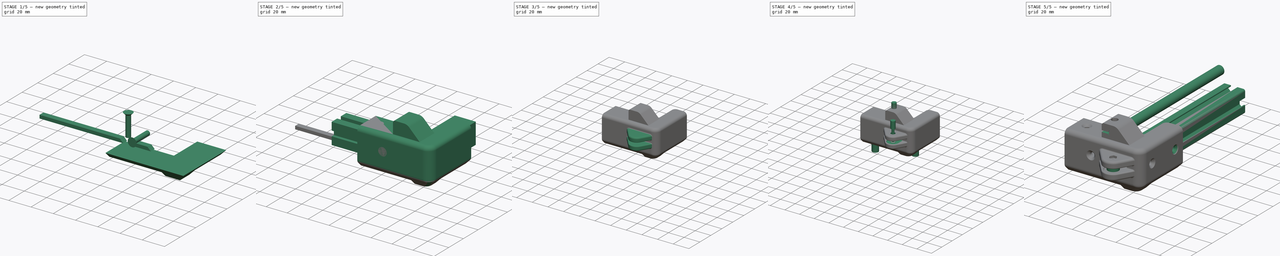
[diagram: build sequence overview — one tinted view per stage of 5, left to right]
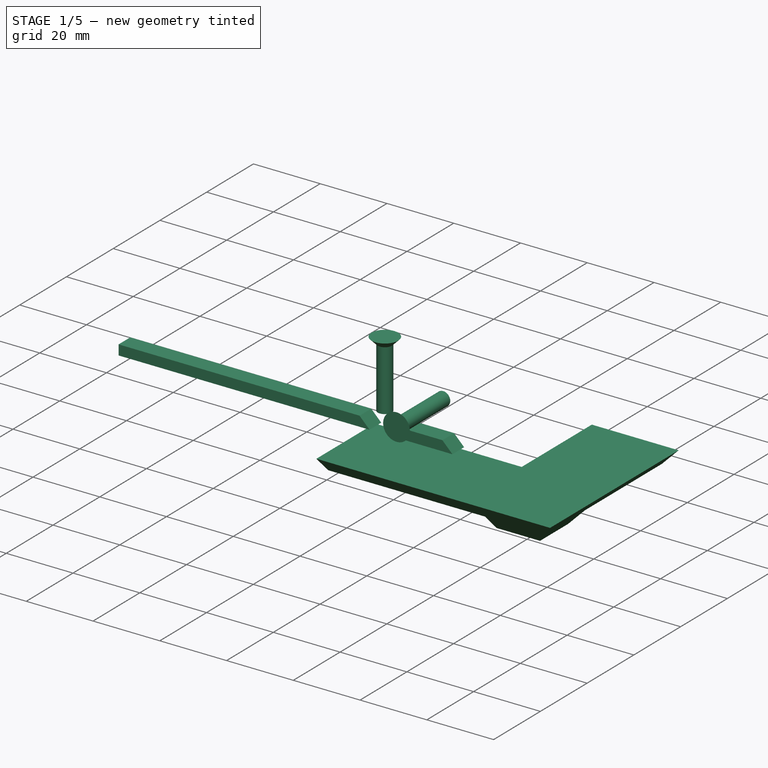
[diagram: stage 1 of 5 — iso view after this stage's code; geometry added in this stage tinted green]
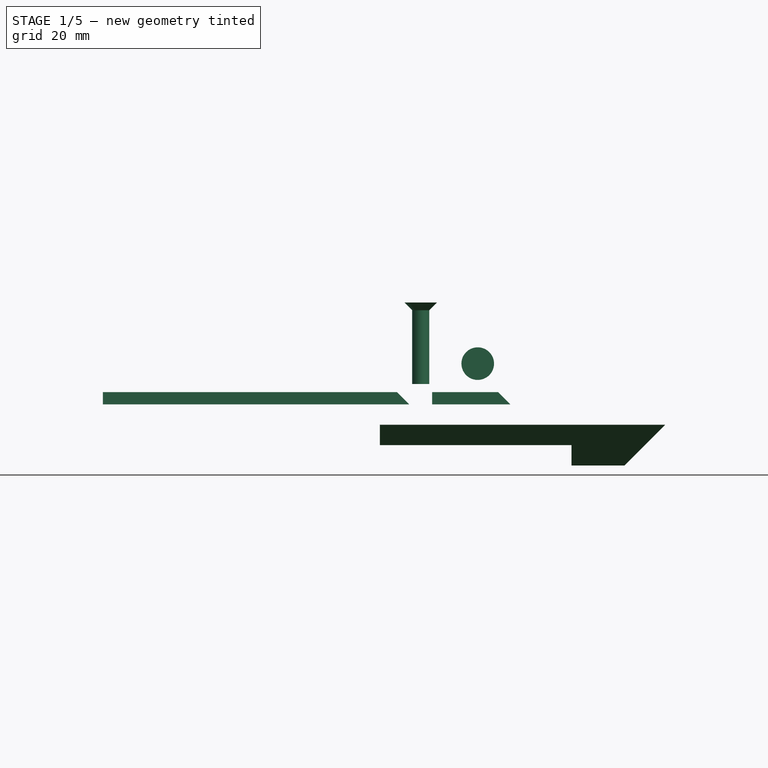
[diagram: stage 1 of 5 — front view after this stage's code; geometry added in this stage tinted green]
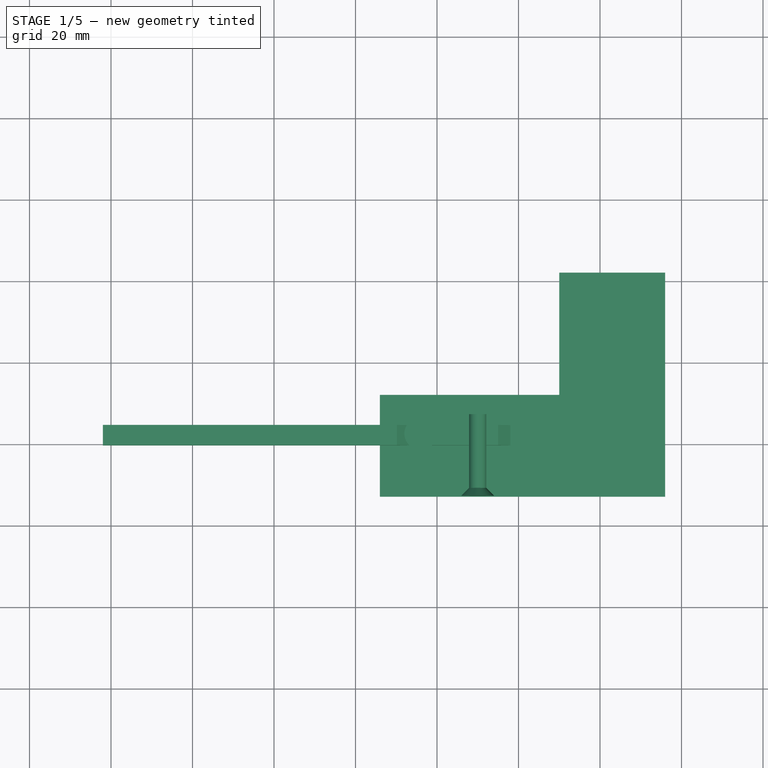
[diagram: stage 1 of 5 — top view after this stage's code; geometry added in this stage tinted green]
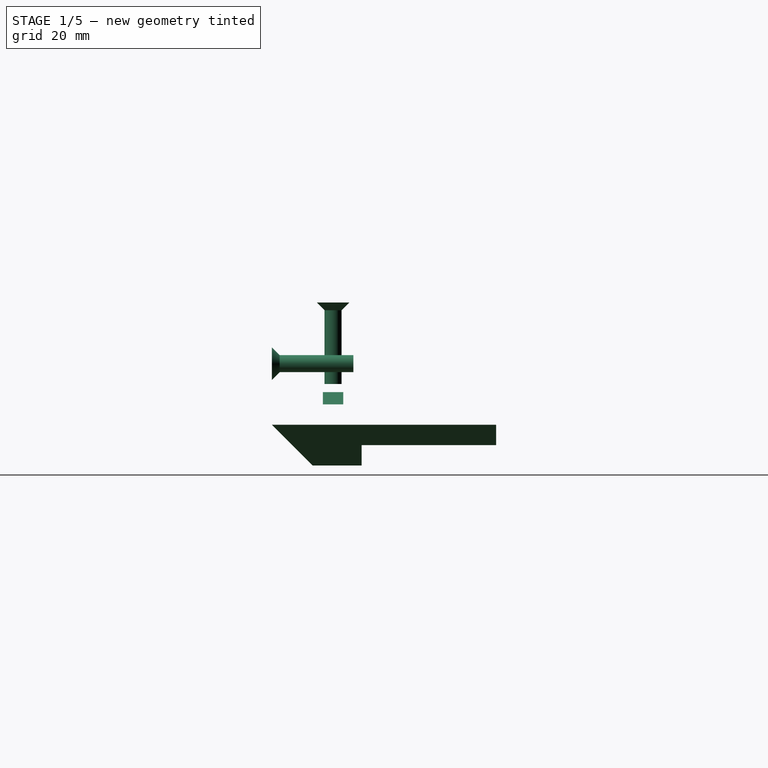
[diagram: stage 1 of 5 — right view after this stage's code; geometry added in this stage tinted green]
FCSTD DOCUMENT  (FreeCAD 0.16RUnknown)
Label: FrontCorner
License: All rights reserved
LicenseURL: http://en.wikipedia.org/wiki/All_rights_reserved
objects: Part::FeaturePython×29, Sketcher::SketchObject×17, Part::Cut×17, PartDesign::Pad×13, Part::Fillet×5, Part::Box×4, App::DocumentObjectGroup×4, Part::Chamfer×4, Part::MultiFuse×4, Part::Mirroring×3, Part::MultiCommon×3, PartDesign::Draft×3, Part::Feature×2, Part::Extrusion×2, Part::Compound×2, PartDesign::Pocket×2, Part::Part2DObjectPython×1, Spreadsheet::Sheet×1, PartDesign::Revolution×1
note: 128 computed .brp shape members not serialized (recipe doc carries the construction recipe); baked Part::Feature solids carry a one-line shape summary decoded from their .brp

FEATURE [Part::Box] Box004  label="Vert20Prof"
  Height = 20
  Length = 20
  Placement = pos=(-10,-10,-10) rot=(0,0,1;0rad)
  Width = 100
FEATURE [Part::Box] Box001  label="20GuideHalf"
  Height = 100
  Length = 3
  Placement = pos=(0,-2.5,2.825) rot=(0,0,1;0rad)
  Width = 5
FEATURE [Part::Box] Box002  label="20GuideHalf001"
  Height = 100
  Length = 3
  Placement = pos=(0,2.5,-2.825) rot=(1,0,0;3.14159rad)
  Width = 5
FEATURE [Part::Compound] Compound002  label="20Guide"
  Links = -> [Box001,Box002]
FEATURE [Part::Box] Box  label="Foot"
  Height = 10
  Length = 23
  Placement = pos=(16,7,-15) rot=(0,1,0;3.14159rad)
  Width = 22
FEATURE [Part::Part2DObjectPython] Clone2D  label="Clone of Base (2D)"  # Draft 2D object (typed FeaturePython)
  Objects = -> [Sketch001]
  Placement = pos=(0,0,-15) rot=(0,0,1;0rad)
  Scale = (1,1,1)
FEATURE [PartDesign::Pad] Pad018  label="SideCover"
  Length = 5
  Length2 = 100
  Placement = pos=(0,0,-15) rot=(0,0,1;0rad)
  Reversed = true
  Sketch = -> Clone2D
  Type = 0
FEATURE [Part::MultiFuse] Fusion005  label="LowerCover"
  Shapes = -> [Pad018,Box]
FEATURE [Part::FeaturePython] Clone039  label="Clone of 20Guide002"  # Draft clone (typed FeaturePython)
  Objects = -> [Compound002]
  Placement = pos=(-44,22,10) rot=(0,1,0;1.5708rad)
  Scale = (1,1,1)
  expr: Placement.Base.x = M4PrintHead003.Placement.Base.x
FEATURE [Part::FeaturePython] Clone040  label="Clone of Vert20Prof001"  # Draft clone (typed FeaturePython)
  Objects = -> [Box004]
  Placement = pos=(-22,12,-10) rot=(0,0,1;1.5708rad)
  Scale = (1,1,1)
FEATURE [Part::MultiCommon] Common002  label="UpperFront"
  Shapes = -> [Clone040,Clone039]
FEATURE [PartDesign::Draft] Draft002  label="UpperFrontDrafted"
  Angle = 45
  Base = -> Common002 [Face10,Face1]
  NeutralPlane = -> Common002 [Face2]
  Reversed = true
FEATURE [App::DocumentObjectGroup] Group002  label="Guides_src"
  Group = -> [Box004,Compound002,Compound003,Common001,Common002,Draft002]
FEATURE [Part::FeaturePython] Clone041  label="Clone of UpperFrontDrafted"  # Draft clone (typed FeaturePython)
  Objects = -> [Draft002]
  Scale = (1,1,1)
FEATURE [Sketcher::SketchObject] Sketch051  label="DIN7991M4Bolt"
  expr: Constraints[12] = pars.CilLoose + 2
  sketch-geometry (5):
    g0: LineSegment StartX=0 StartY=0 StartZ=0 EndX=4 EndY=0 EndZ=0
    g1: LineSegment StartX=4 StartY=0 StartZ=0 EndX=2.1 EndY=-1.9 EndZ=0
    g2: LineSegment StartX=2.1 StartY=-1.9 StartZ=0 EndX=2.1 EndY=-20 EndZ=0
    g3: LineSegment StartX=2.1 StartY=-20 StartZ=0 EndX=0 EndY=-20 EndZ=0
    g4: LineSegment StartX=0 StartY=-20 StartZ=0 EndX=0 EndY=0 EndZ=0
  constraints (14):
    c: Coincident(g0,g1)
    c: Coincident(g1,g2)
    c: Coincident(g2,g3)
    c: Coincident(g3,g4)
    c: Coincident(g4,g0)
    c: Coincident(g0,g-1)
    c: Horizontal(g0)
    c: Horizontal(g3)
    c: Vertical(g4)
    c: Vertical(g2)
    c: Angle(g0,g1) = 0.785398
    c: DistanceY(g4,g4) = 20
    c: DistanceX(g3,g3) = 2.1
    c: DistanceX(g0,g0) = 4
FEATURE [Spreadsheet::Sheet] Spreadsheet001  label="pars"
  cells = A1=Bolts and Nuts; B1=Value; D1=Components; E1=Value; A2=Thread Tight Tolerance (Radius, ratio); B2(ThrTighRatio)=0.96; D2=Tight Cilinder Tolerances (Radius, mm); E2(CilTight)=0.1; A3=Thread Tight Tolerance (Radius, mm); B3(ThrTightmm)=0.1; D3=Loose Cilinder Tolerances (Radius, mm); E3(CilLoose)=0.1; A5=Nut Slot Width Clearance (mm); B5(NutWidthClearmm)=0.1; A6=Nut Slot Thickess Clearance (mm); B6(NutThickClearmm)=0.1; A13=Particular parameters; B13=Value; A14=Smooth Rod Tolerance; B14(SmRodTol)=-0.05; A15=Profile Tolerance; B15(ProfTol)=0
FEATURE [PartDesign::Revolution] Revolution001  label="DIN7991M4Bolt001"
  Angle = 360
  Axis = (0,1,0)
  Base = (0,0,0)
  ReferenceAxis = -> Sketch051 [V_Axis]
  Reversed = true
  Sketch = -> Sketch051
FEATURE [Part::FeaturePython] refine001  label="refine_LowerCover"  # WARN: FeaturePython — macro-defined, semantics opaque (R4)
  Base = -> Fusion005
FEATURE [PartDesign::Draft] Draft003  label="LowerFeet"
  Angle = 45
  Base = -> refine001 [Face9,Face11]
  NeutralPlane = -> refine001 [Face10]
  Reversed = true
FEATURE [Part::FeaturePython] Clone048002  label="Clone of Clone of UpperFrontDrafted"  # Draft clone (typed FeaturePython)
  Objects = -> [Clone041]
  Placement = pos=(0,44,0) rot=(1,0,0;3.14159rad)
  Scale = (1,1,1)
FEATURE [Part::FeaturePython] Clone048003  label="Clone of DIN7991M4Bolt002"  # Draft clone (typed FeaturePython)
  Objects = -> [Revolution001]
  Placement = pos=(-30,7,0) rot=(1,0,0;3.14159rad)
  Scale = (1,1,1)
FEATURE [Part::FeaturePython] Clone048004  label="Clone of DIN7991M4Bolt003"  # Draft clone (typed FeaturePython)
  Objects = -> [Revolution001]
  Placement = pos=(-44,22,15) rot=(1,0,0;1.5708rad)
  Scale = (1,1,1)
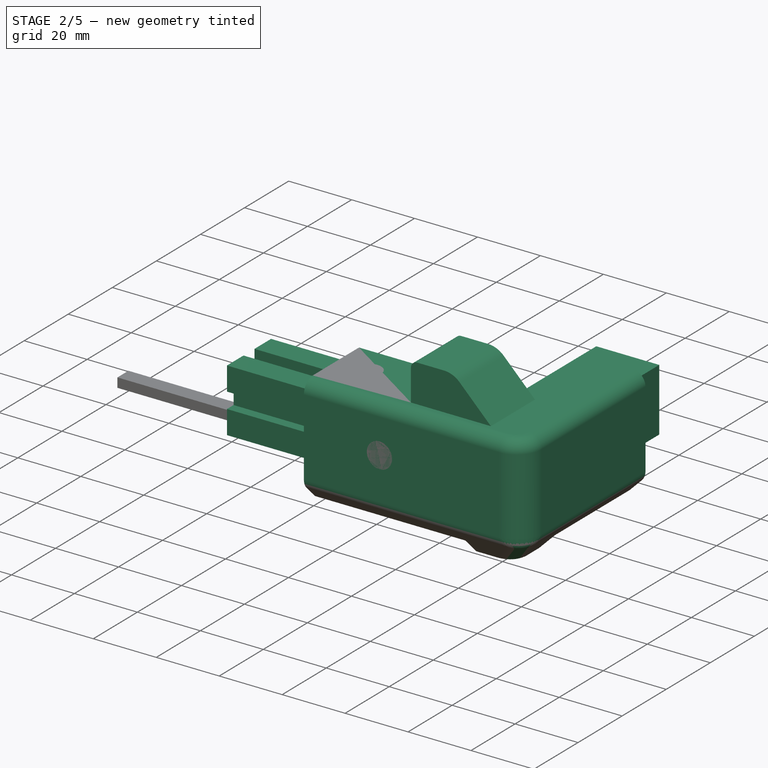
[diagram: stage 2 of 5 — iso view after this stage's code; geometry added in this stage tinted green]
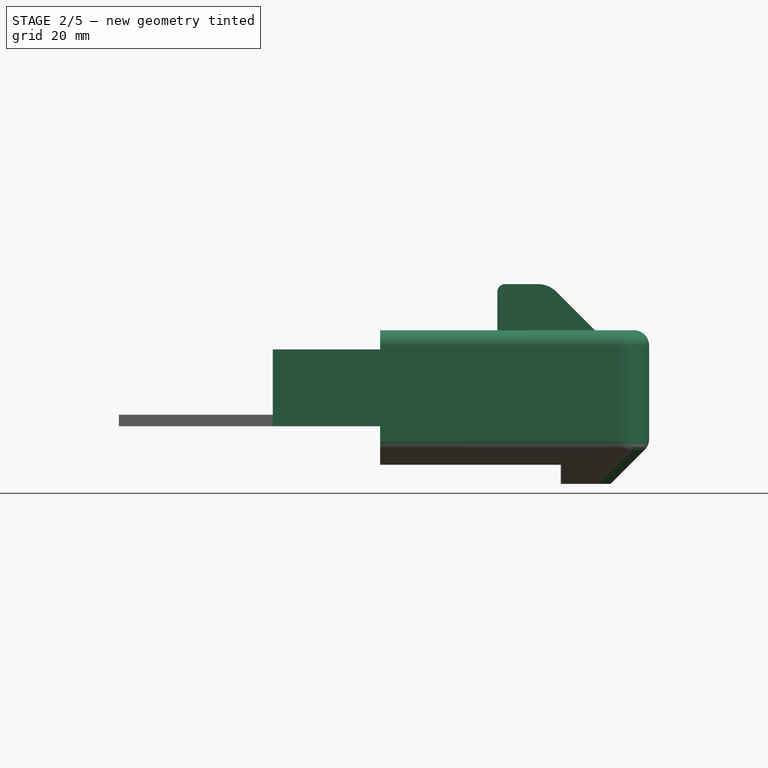
[diagram: stage 2 of 5 — front view after this stage's code; geometry added in this stage tinted green]
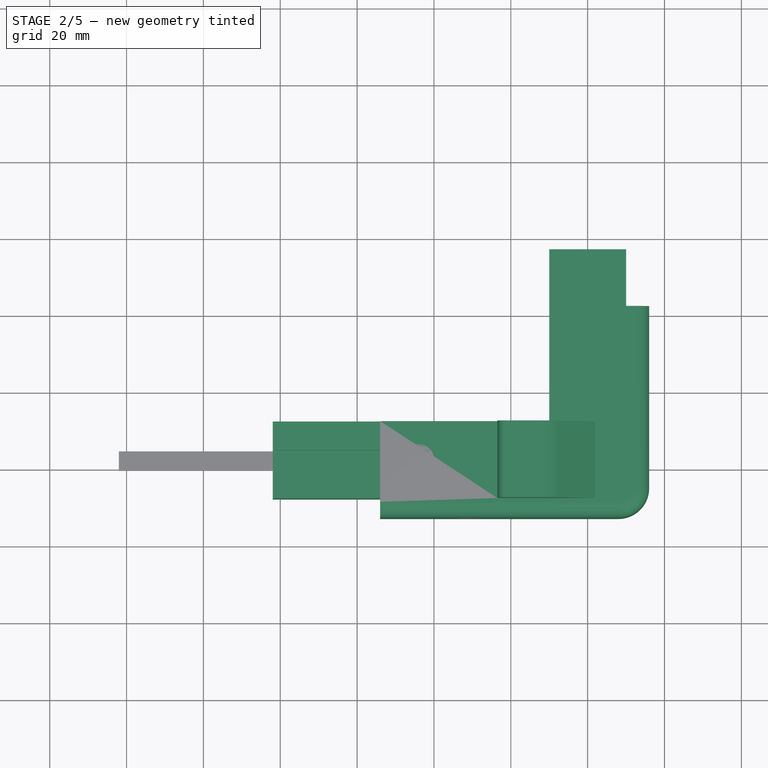
[diagram: stage 2 of 5 — top view after this stage's code; geometry added in this stage tinted green]
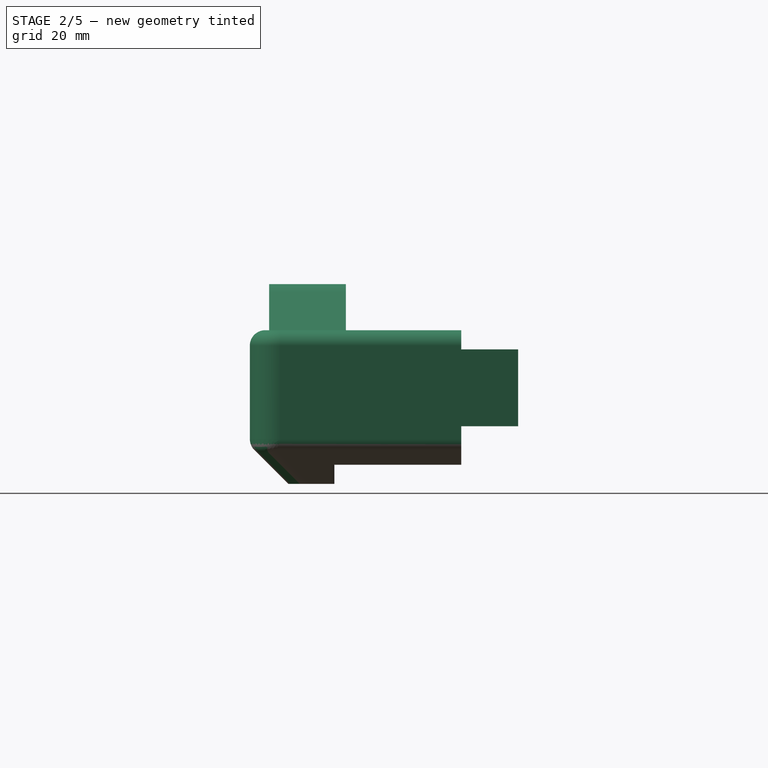
[diagram: stage 2 of 5 — right view after this stage's code; geometry added in this stage tinted green]
FEATURE [Sketcher::SketchObject] Sketch001  label="Base"
  sketch-geometry (6):
    g0: LineSegment StartX=16 StartY=62 StartZ=0 EndX=-10 EndY=62 EndZ=0
    g1: LineSegment StartX=-10 StartY=62 StartZ=0 EndX=-10 EndY=32 EndZ=0
    g2: LineSegment StartX=-10 StartY=32 StartZ=0 EndX=-54 EndY=32 EndZ=0
    g3: LineSegment StartX=-54 StartY=32 StartZ=0 EndX=-54 EndY=7 EndZ=0
    g4: LineSegment StartX=-54 StartY=7 StartZ=0 EndX=16 EndY=7 EndZ=0
    g5: LineSegment StartX=16 StartY=7 StartZ=0 EndX=16 EndY=62 EndZ=0
  constraints (18):
    c: Coincident(g0,g1)
    c: Coincident(g1,g2)
    c: Coincident(g2,g3)
    c: Coincident(g3,g4)
    c: Coincident(g5,g0)
    c: Horizontal(g0)
    c: Horizontal(g2)
    c: Horizontal(g4)
    c: Vertical(g3)
    c: Vertical(g1)
    c: Vertical(g5)
    c: DistanceX(g0,g0) = 26
    c: DistanceY(g3,g3) = 25
    c: DistanceY(g2) = 32
    c: DistanceX(g0) = -10
    c: DistanceX(g2,g2) = 44
    c: DistanceY(g1,g1) = 30
    c: Coincident(g4,g5)
FEATURE [PartDesign::Pad] Pad  label="Base001"
  Length = 30
  Length2 = 100
  Midplane = true
  Sketch = -> Sketch001
  Type = 0
FEATURE [Sketcher::SketchObject] Sketch002  label="IdlerHold"
  sketch-geometry (11):
    g0: LineSegment [constr] StartX=15 StartY=57.5009 StartZ=0 EndX=-10 EndY=57.5009 EndZ=0
    g1: LineSegment [constr] StartX=-10 StartY=57.5009 StartZ=0 EndX=-10 EndY=32 EndZ=0
    g2: LineSegment [constr] StartX=-10 StartY=32 StartZ=0 EndX=-39.2593 EndY=32 EndZ=0
    g3: LineSegment [constr] StartX=-39.2593 StartY=32 StartZ=0 EndX=-39.2593 EndY=7 EndZ=0
    g4: LineSegment [constr] StartX=-39.2593 StartY=7 StartZ=0 EndX=7 EndY=7 EndZ=0
    g5: LineSegment [constr] StartX=15 StartY=15 StartZ=0 EndX=15 EndY=57.5009 EndZ=0
    g6: ArcOfCircle [constr] CenterX=7 CenterY=15 CenterZ=0 NormalX=0 NormalY=0 NormalZ=1 Radius=8 StartAngle=4.71239 EndAngle=6.28319
    g7: LineSegment StartX=-22.1224 StartY=7 StartZ=0 EndX=-11.3944 EndY=-5.78509 EndZ=0
    g8: LineSegment StartX=11.5416 StartY=9.78488 StartZ=0 EndX=3.29421 EndY=-4.50003 EndZ=0
    g9: LineSegment StartX=-22.1224 StartY=7 StartZ=0 EndX=11.5416 EndY=9.78488 EndZ=0
    g10: ArcOfCircle CenterX=-4.5 CenterY=0 CenterZ=0 NormalX=0 NormalY=0 NormalZ=1 Radius=9 StartAngle=3.83972 EndAngle=5.75958
  constraints (30):
    c: Coincident(g0,g1)
    c: Coincident(g1,g2)
    c: Coincident(g2,g3)
    c: Coincident(g3,g4)
    c: Coincident(g5,g0)
    c: Horizontal(g0)
    c: Horizontal(g2)
    c: Horizontal(g4)
    c: Vertical(g3)
    c: Vertical(g1)
    c: Vertical(g5)
    c: DistanceX(g0,g0) = 25
    c: DistanceY(g3,g3) = 25
    c: DistanceY(g2) = 32
    c: DistanceX(g0) = -10
    c: Tangent(g5,g6) = -1.5708
    c: Tangent(g4,g6) = -1.5708
    c: Radius(g6) = 8
    c: Coincident(g7,g9)
    c: Coincident(g8,g9)
    c: PointOnObject(g10,g-1)
    c: DistanceX(g10) = -4.5
    c: Coincident(g10,g8)
    c: Coincident(g10,g7)
    c: PointOnObject(g7,g4)
    c: Tangent(g7,g10)
    c: Tangent(g10,g8)
    c: Radius(g10) = 9
    c: Angle(g7) = -0.872665
    c: Angle(g8) = -2.0944
FEATURE [Sketcher::SketchObject] Sketch003  label="ProfileCavity"
  expr: Constraints[11] = 20 + pars.ProfTol
  sketch-geometry (6):
    g0: LineSegment StartX=10 StartY=76.8219 StartZ=0 EndX=-10 EndY=76.8219 EndZ=0
    g1: LineSegment StartX=-10 StartY=76.8219 StartZ=0 EndX=-10 EndY=32 EndZ=0
    g2: LineSegment StartX=-10 StartY=32 StartZ=0 EndX=-81.949 EndY=32 EndZ=0
    g3: LineSegment StartX=-81.949 StartY=32 StartZ=0 EndX=-81.949 EndY=12 EndZ=0
    g4: LineSegment StartX=-81.949 StartY=12 StartZ=0 EndX=10 EndY=12 EndZ=0
    g5: LineSegment StartX=10 StartY=12 StartZ=0 EndX=10 EndY=76.8219 EndZ=0
  constraints (16):
    c: Coincident(g0,g1)
    c: Coincident(g1,g2)
    c: Coincident(g2,g3)
    c: Coincident(g3,g4)
    c: Coincident(g5,g0)
    c: Horizontal(g0)
    c: Horizontal(g2)
    c: Horizontal(g4)
    c: Vertical(g3)
    c: Vertical(g1)
    c: Vertical(g5)
    c: DistanceX(g0,g0) = 20
    c: DistanceY(g2) = 32
    c: DistanceX(g0) = -10
    c: Equal(g3,g0)
    c: Coincident(g4,g5)
FEATURE [PartDesign::Pad] Pad002  label="ProfileCavity001"
  Length = 20
  Length2 = 100
  Midplane = true
  Sketch = -> Sketch003
  Type = 0
  expr: Length = 20 + pars.ProfTol
FEATURE [Part::FeaturePython] Clone027  label="Clone of 20Guide001"  # Draft clone (typed FeaturePython)
  Objects = -> [Compound002]
  Placement = pos=(-30,22,10) rot=(0,1,0;1.5708rad)
  Scale = (1,1,1)
FEATURE [Part::FeaturePython] Clone028  label="Clone of Vert20Prof"  # Draft clone (typed FeaturePython)
  Objects = -> [Box004]
  Placement = pos=(-14,12,-10) rot=(0,0,1;1.5708rad)
  Scale = (1,1,1)
FEATURE [Part::MultiCommon] Common001  label="UpperSlot"
  Placement = pos=(0,22,-22) rot=(1,0,0;1.5708rad)
  Shapes = -> [Clone027,Clone028]
FEATURE [PartDesign::Draft] Draft  label="UpperSlot001"
  Angle = 45
  Base = -> Common001 [Face5,Face11]
  NeutralPlane = -> Common001 [Face1]
  Placement = pos=(0,22,-22) rot=(1,0,0;1.5708rad)
  Reversed = true
FEATURE [Part::Cut] Cut
  Base = -> Pad002
  Tool = -> Clone041
FEATURE [Part::Cut] Cut004004009
  Base = -> Cut
  Tool = -> Draft
FEATURE [Part::MultiFuse] Fusion002  label="Foot002"
  Shapes = -> [Pad,Draft003]
FEATURE [Part::FeaturePython] refine002  label="refine_Foot002"  # WARN: FeaturePython — macro-defined, semantics opaque (R4)
  Base = -> Fusion002
FEATURE [Sketcher::SketchObject] Sketch048  label="LowerPlateCut"
  Placement = pos=(0,0,-20) rot=(1,0,0;3.14159rad)
  Support = -> refine002 [Face6]
  sketch-geometry (6):
    g0: LineSegment StartX=-70 StartY=-14 StartZ=0 EndX=-7 EndY=-14 EndZ=0
    g1: LineSegment StartX=-7 StartY=-14 StartZ=0 EndX=-7 EndY=-29 EndZ=0
    g2: LineSegment StartX=-7 StartY=-29 StartZ=0 EndX=8 EndY=-29 EndZ=0
    g3: LineSegment StartX=8 StartY=-29 StartZ=0 EndX=8 EndY=-70 EndZ=0
    g4: LineSegment StartX=8 StartY=-70 StartZ=0 EndX=-70 EndY=-70 EndZ=0
    g5: LineSegment StartX=-70 StartY=-70 StartZ=0 EndX=-70 EndY=-14 EndZ=0
  constraints (18):
    c: Horizontal(g0)
    c: Vertical(g1)
    c: Horizontal(g2)
    c: Vertical(g3)
    c: Coincident(g3,g4)
    c: Horizontal(g4)
    c: Coincident(g4,g5)
    c: Coincident(g5,g0)
    c: Vertical(g5)
    c: DistanceY(g2) = -29
    c: DistanceX(g1) = -7
    c: DistanceY(g0) = -14
    c: DistanceX(g3) = 8
    c: Coincident(g1,g0)
    c: Coincident(g1,g2)
    c: Coincident(g2,g3)
    c: DistanceX(g4) = -70
    c: DistanceY(g4) = -70
FEATURE [PartDesign::Pocket] Pocket001  label="LowerPlateCut001"
  Length = 5
  Sketch = -> Sketch048
  Type = 0
FEATURE [Part::FeaturePython] refine003  label="refine_LowerPlateCut001"  # WARN: FeaturePython — macro-defined, semantics opaque (R4)
  Base = -> Pocket001
FEATURE [Part::Fillet] Fillet  label="LoweLidFillet"
  Base = -> refine003
  Edges = 3 edges: [Edge30 r=9,Edge41 r=9,Edge44 r=4]
FEATURE [Part::Fillet] Fillet008  label="FootFillet"
  Base = -> Fillet
  Edges = 8 edges: [Edge25 r=1,Edge37 r=1,Edge47 r=8,Edge48 r=4,Edge49 r=4,Edge50 r=4,Edge51 r=8,Edge55 r=4]
FEATURE [Sketcher::SketchObject] Sketch042  label="AntiCollitionCut"
  Placement = pos=(0,0,15) rot=(0,0,1;0rad)
  Support = -> Fillet008 [Face6]
  sketch-geometry (4):
    g0: LineSegment StartX=-14.9846 StartY=64.9854 StartZ=0 EndX=0 EndY=64.9854 EndZ=0
    g1: LineSegment StartX=0 StartY=64.9854 StartZ=0 EndX=0 EndY=32 EndZ=0
    g2: LineSegment StartX=0 StartY=32 StartZ=0 EndX=-14.9846 EndY=32 EndZ=0
    g3: LineSegment StartX=-14.9846 StartY=32 StartZ=0 EndX=-14.9846 EndY=64.9854 EndZ=0
  constraints (10):
    c: Coincident(g0,g1)
    c: Coincident(g1,g2)
    c: Coincident(g2,g3)
    c: Coincident(g3,g0)
    c: Horizontal(g0)
    c: Horizontal(g2)
    c: Vertical(g1)
    c: Vertical(g3)
    c: PointOnObject(g0,g-2)
    c: DistanceY(g1) = 32
FEATURE [PartDesign::Pocket] Pocket  label="AntiCollitionCut001"
  Length = 20
  Sketch = -> Sketch042
  Type = 0
FEATURE [Part::FeaturePython] refine004  label="refine_AntiCollitionCut001"  # WARN: FeaturePython — macro-defined, semantics opaque (R4)
  Base = -> Pocket
FEATURE [Part::Fillet] Fillet003  label="CollitionFillet"
  Base = -> refine004
  Edges = 2 edges r=4: [Edge4,Edge22]
FEATURE [Sketcher::SketchObject] Sketch041  label="SmRodHolder"
  Placement = pos=(0,32,0) rot=(0,0.707107,0.707107;3.14159rad)
  Support = -> Fillet003 [Face13]
  sketch-geometry (6):
    g0: LineSegment StartX=8.05023 StartY=24.9497 StartZ=0 EndX=-2.89949 EndY=14 EndZ=0
    g1: LineSegment StartX=-2.89949 StartY=14 StartZ=0 EndX=23.5 EndY=14 EndZ=0
    g2: LineSegment StartX=21.5 StartY=27 StartZ=0 EndX=13 EndY=27 EndZ=0
    g3: ArcOfCircle CenterX=13 CenterY=20 CenterZ=0 NormalX=0 NormalY=0 NormalZ=1 Radius=7 StartAngle=1.5708 EndAngle=2.3562
    g4: LineSegment StartX=23.5 StartY=25 StartZ=0 EndX=23.5 EndY=14 EndZ=0
    g5: ArcOfCircle CenterX=21.5 CenterY=25 CenterZ=0 NormalX=0 NormalY=0 NormalZ=1 Radius=2 StartAngle=0 EndAngle=1.5708
  constraints (18):
    c: Coincident(g0,g1)
    c: Horizontal(g1)
    c: Coincident(g0,g3)
    c: Coincident(g3,g2)
    c: Tangent(g3,g2)
    c: Tangent(g0,g3)
    c: DistanceY(g3) = 20
    c: DistanceX(g3) = 13
    c: Radius(g3) = 7
    c: Angle(g0) = -2.35619
    c: Horizontal(g2)
    c: Coincident(g4,g1)
    c: Tangent(g2,g5) = -1.5708
    c: Tangent(g4,g5) = 1.5708
    c: Radius(g5) = 2
    c: Vertical(g4)
    c: DistanceY(g0) = 14
    c: DistanceX(g3,g1) = 10.5
FEATURE [PartDesign::Pad] Pad014  label="SmRodHolder001"
  Length = 20
  Length2 = 100
  Reversed = true
  Sketch = -> Sketch041
  Type = 0
FEATURE [Part::FeaturePython] refine005  label="refine_SmRodHolder001"  # WARN: FeaturePython — macro-defined, semantics opaque (R4)
  Base = -> Pad014
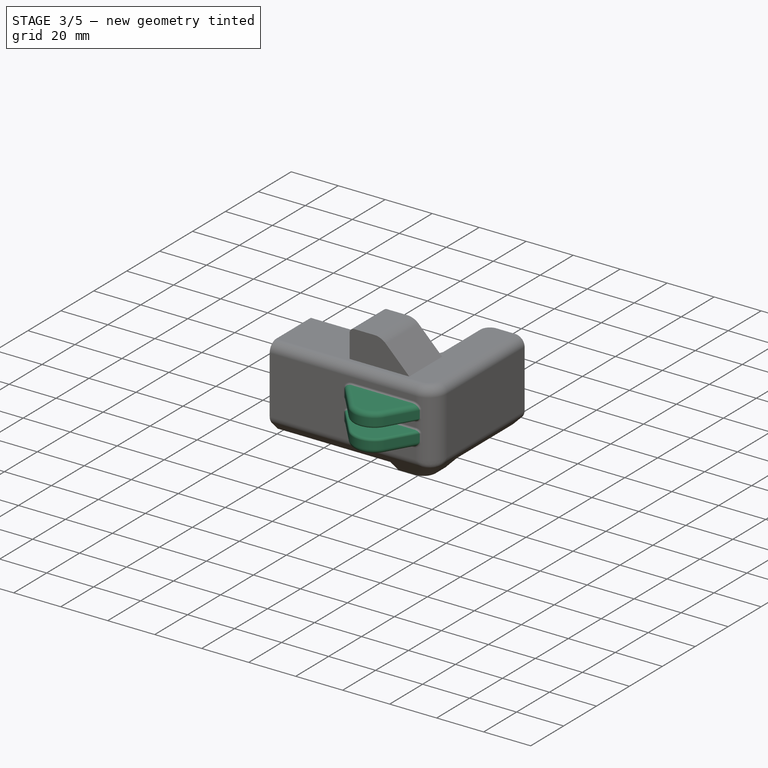
[diagram: stage 3 of 5 — iso view after this stage's code; geometry added in this stage tinted green]
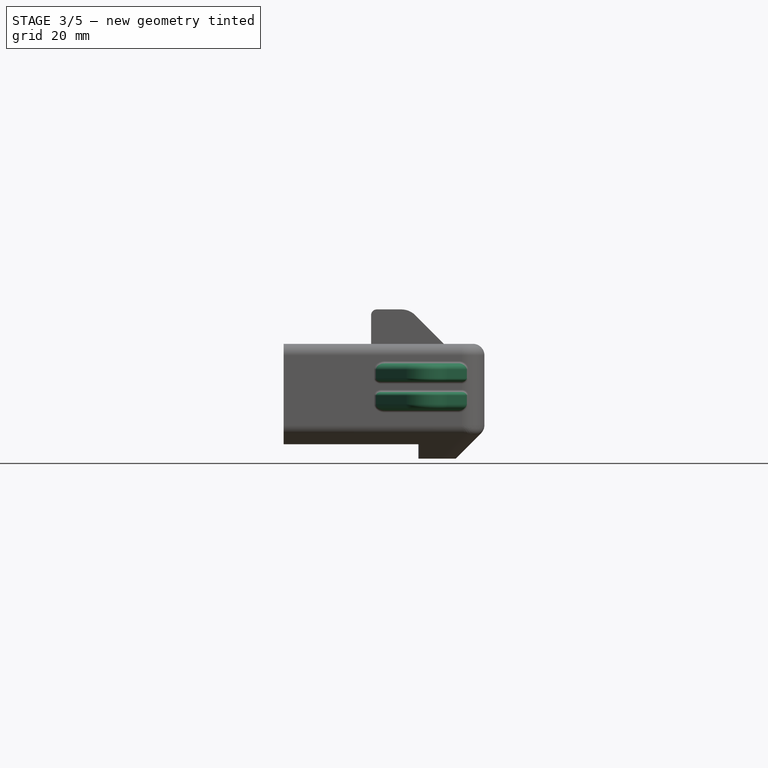
[diagram: stage 3 of 5 — front view after this stage's code; geometry added in this stage tinted green]
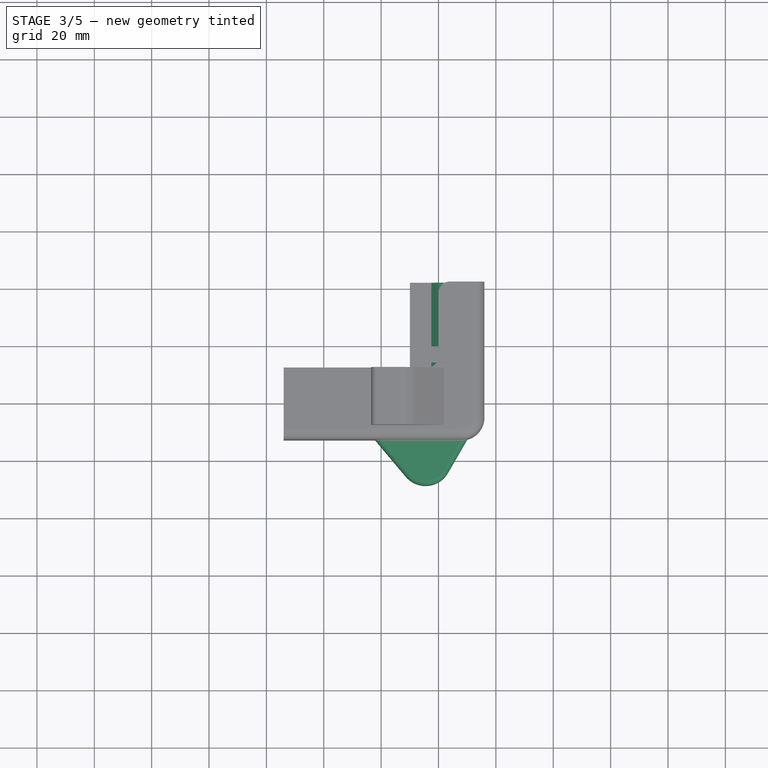
[diagram: stage 3 of 5 — top view after this stage's code; geometry added in this stage tinted green]
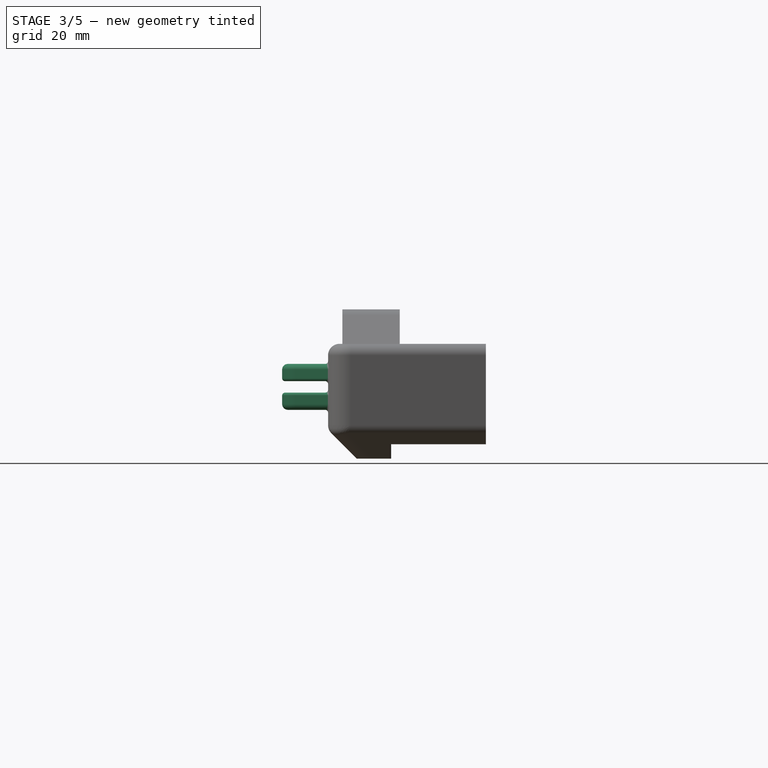
[diagram: stage 3 of 5 — right view after this stage's code; geometry added in this stage tinted green]
FEATURE [PartDesign::Pad] Pad015  label="IdlerHold001"
  Length = 6
  Length2 = 100
  Sketch = -> Sketch002
  Type = 0
FEATURE [Part::Fillet] Fillet005
  Base = -> Pad015
  Edges = 2 edges: [Edge11 r=1,Edge12 r=2]
  Placement = pos=(0,0,2) rot=(0,0,1;0rad)
FEATURE [Part::Mirroring] Part__Mirroring002  label="Fillet005 (Mirror #3)"
  Base = (0,0,0)
  Normal = (0,0,1)
  Source = -> Fillet005
FEATURE [Sketcher::SketchObject] Sketch043  label="20AngledGuideSketch"
  sketch-geometry (3):
    g0: LineSegment StartX=0 StartY=2.5 StartZ=0 EndX=-2.5 EndY=0 EndZ=0
    g1: LineSegment StartX=-2.5 StartY=0 StartZ=0 EndX=2.5 EndY=0 EndZ=0
    g2: LineSegment StartX=2.5 StartY=0 StartZ=0 EndX=0 EndY=2.5 EndZ=0
  constraints (9):
    c: Coincident(g0,g1)
    c: Coincident(g1,g2)
    c: Coincident(g2,g0)
    c: Horizontal(g1)
    c: PointOnObject(g0,g-1)
    c: PointOnObject(g0,g-2)
    c: Symmetric(g1,g0,g-2)
    c: Perpendicular(g2,g0)
    c: DistanceX(g1) = 5
FEATURE [Part::Extrusion] Extrude  label="20AngledGuideHalf"
  Base = -> Sketch043
  Dir = (0,0,100)
  Placement = pos=(0,0,2.825) rot=(0,0,1;0rad)
  Solid = true
FEATURE [Part::Extrusion] Extrude001  label="20AngledGuideHalf001"
  Base = -> Sketch043
  Dir = (0,0,-100)
  Placement = pos=(0,0,-2.825) rot=(0,0,1;0rad)
  Solid = true
FEATURE [Part::Compound] Compound003  label="20AngledGuide"
  Links = -> [Extrude,Extrude001]
FEATURE [Part::FeaturePython] Clone025  label="Clone of 20Guide"  # Draft clone (typed FeaturePython)
  Objects = -> [Compound002]
  Placement = pos=(10,22,0) rot=(0,0.707107,0.707107;3.14159rad)
  Scale = (1,1,1)
FEATURE [Part::FeaturePython] Clone026  label="Clone of Clone of 20Guide"  # Draft clone (typed FeaturePython)
  Objects = -> [Clone025]
  Placement = pos=(10,52,0) rot=(0,0.707107,0.707107;3.14159rad)
  Scale = (1,1,1)
FEATURE [Part::MultiCommon] Common  label="SideSlots"
  Shapes = -> [Clone025,Clone026]
FEATURE [Part::FeaturePython] Clone031  label="Clone of 20AngledGuide"  # Draft clone (typed FeaturePython)
  Objects = -> [Compound003]
  Placement = pos=(0,37,-10) rot=(1,0,0;1.5708rad)
  Scale = (1,1,1)
FEATURE [Part::Cut] Cut004004010
  Base = -> Cut004004009
  Tool = -> Clone048002
FEATURE [Part::Cut] Cut004004011
  Base = -> Cut004004010
  Tool = -> Common
FEATURE [Part::Cut] Cut004004012  label="ProfileCavity002"
  Base = -> Cut004004011
  Tool = -> Clone031
FEATURE [Part::Cut] Cut004004013  label="ProfileCavity003"
  Base = -> refine005
  Tool = -> Cut004004012
FEATURE [Part::MultiFuse] Fusion  label="IdlerHoldAdd"
  Shapes = -> [Cut004004013,Fillet005]
FEATURE [Part::MultiFuse] Fusion003  label="IdlerHold002"
  Shapes = -> [Fusion,Part__Mirroring002]
FEATURE [Part::FeaturePython] refine006  label="refine_IdlerHold002"  # WARN: FeaturePython — macro-defined, semantics opaque (R4)
  Base = -> Fusion003
FEATURE [Part::Fillet] Fillet006
  Base = -> refine006
  Edges = 2 edges r=1: [Edge96,Edge106]
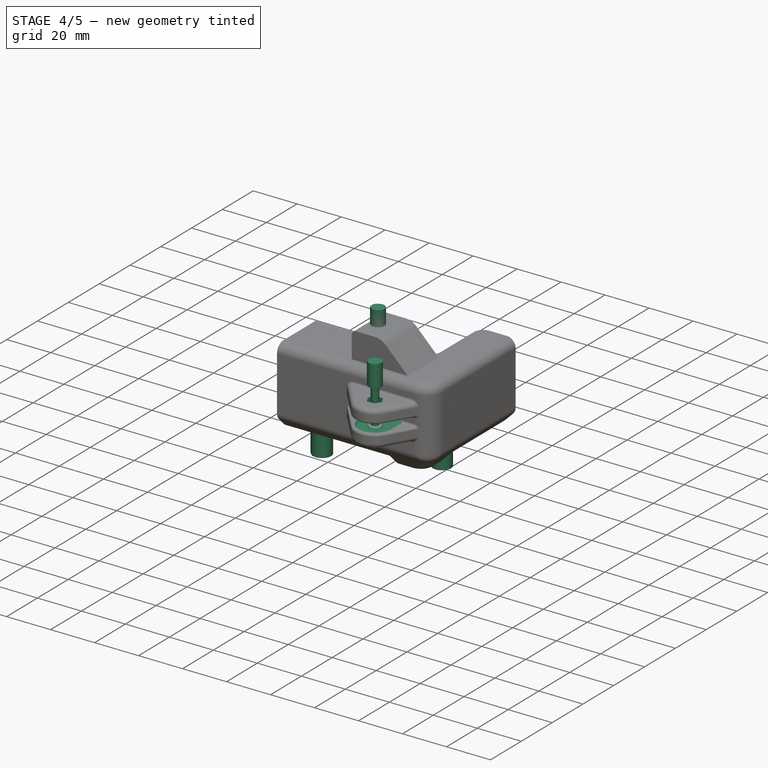
[diagram: stage 4 of 5 — iso view after this stage's code; geometry added in this stage tinted green]
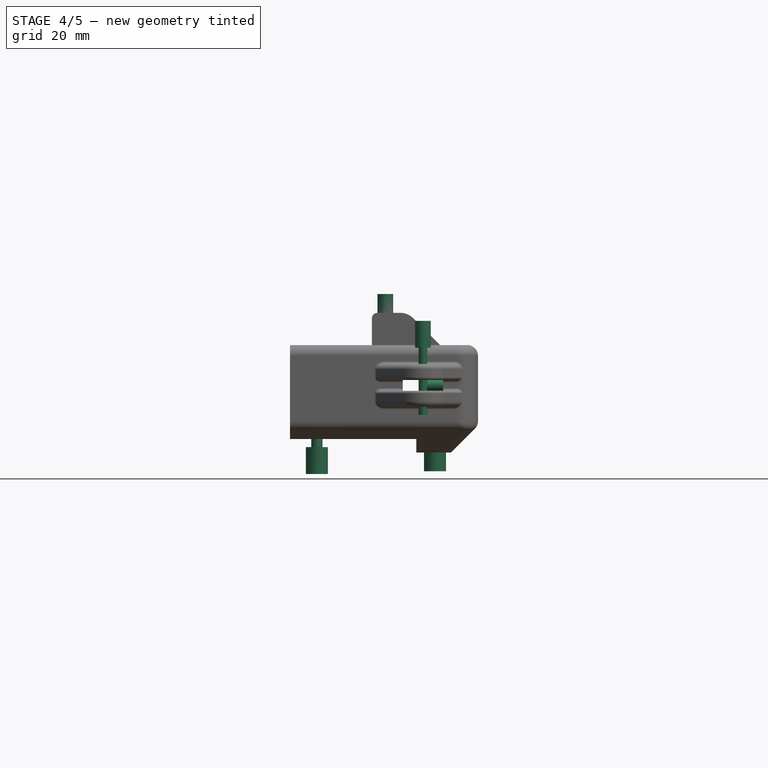
[diagram: stage 4 of 5 — front view after this stage's code; geometry added in this stage tinted green]
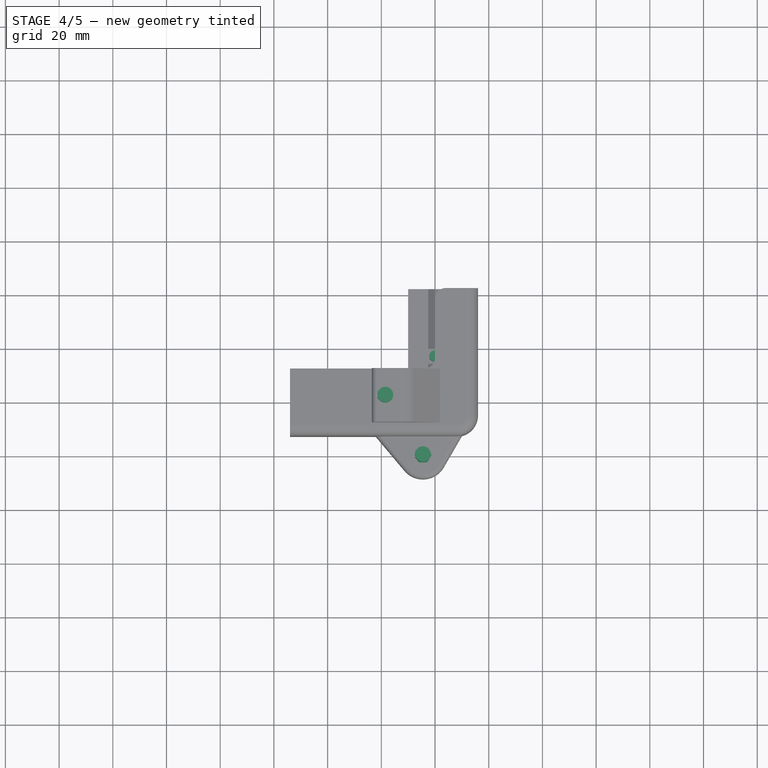
[diagram: stage 4 of 5 — top view after this stage's code; geometry added in this stage tinted green]
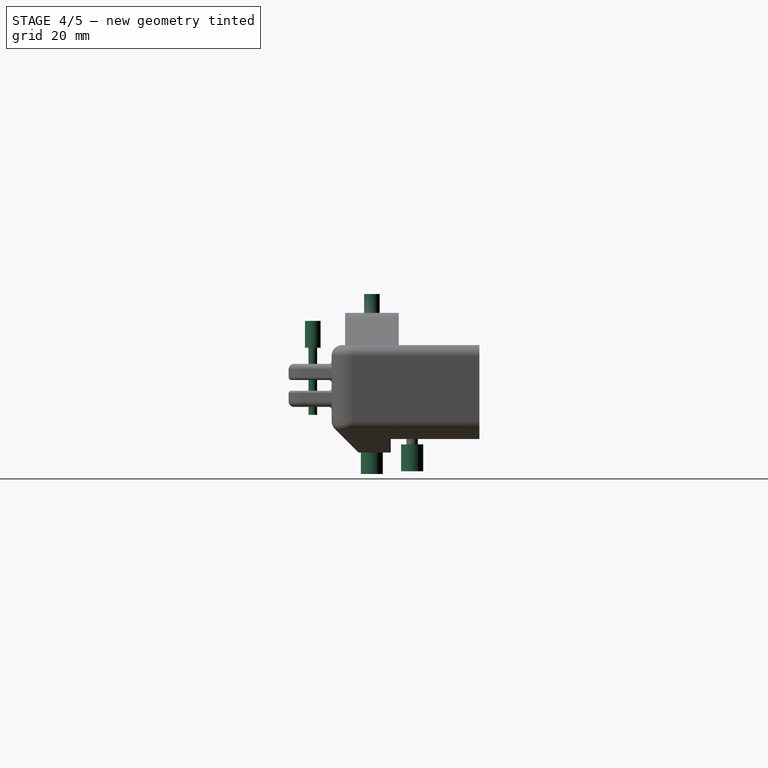
[diagram: stage 4 of 5 — right view after this stage's code; geometry added in this stage tinted green]
FEATURE [Sketcher::SketchObject] Sketch033  label="M3Nut"
  Placement = pos=(0,0,15) rot=(0,0,1;0rad)
  expr: Constraints[19] = 5.5 + pars.NutWidthClearmm
  sketch-geometry (7):
    g0: LineSegment StartX=2.8 StartY=-1.61658 StartZ=0 EndX=2.8 EndY=1.61658 EndZ=0
    g1: LineSegment StartX=2.8 StartY=1.61658 StartZ=0 EndX=-8e-12 EndY=3.23316 EndZ=0
    g2: LineSegment StartX=-8e-12 StartY=3.23316 StartZ=0 EndX=-2.8 EndY=1.61658 EndZ=0
    g3: LineSegment StartX=-2.8 StartY=1.61658 StartZ=0 EndX=-2.8 EndY=-1.61658 EndZ=0
    g4: LineSegment StartX=-2.8 StartY=-1.61658 StartZ=0 EndX=-4e-12 EndY=-3.23316 EndZ=0
    g5: LineSegment StartX=-4e-12 StartY=-3.23316 StartZ=0 EndX=2.8 EndY=-1.61658 EndZ=0
    g6: Circle [constr] CenterX=0 CenterY=0 CenterZ=0 NormalX=0 NormalY=0 NormalZ=1 Radius=3.23316
  constraints (16):
    c: Coincident(g0,g1)
    c: Coincident(g1,g2)
    c: Coincident(g2,g3)
    c: Coincident(g3,g4)
    c: Coincident(g4,g5)
    c: Coincident(g5,g0)
    c: Equal(g0, g1-g5) x5
    c: PointOnObject(g0,g6)
    c: PointOnObject(g1,g6)
    c: PointOnObject(g2,g6)
    c: PointOnObject(g3,g6)
    c: PointOnObject(g4,g6)
    c: PointOnObject(g5,g6)
    c: Vertical(g3)
    c: Coincident(g6,g-1)
    c: DistanceX(g2,g0) = 5.6
FEATURE [PartDesign::Pad] Pad011  label="M3Nut001"
  Length = 3
  Length2 = 100
  Placement = pos=(0,0,15) rot=(0,0,1;0rad)
  Sketch = -> Sketch033
  Type = 0
FEATURE [Sketcher::SketchObject] Sketch044  label="IdlerCavity"
  sketch-geometry (4):
    g0: ArcOfCircle CenterX=-4.5 CenterY=0 CenterZ=0 NormalX=0 NormalY=0 NormalZ=1 Radius=7.5 StartAngle=3.14159 EndAngle=6.28319
    g1: LineSegment StartX=-12 StartY=1.67436e-07 StartZ=0 EndX=-12 EndY=33.262 EndZ=0
    g2: LineSegment StartX=-12 StartY=33.262 StartZ=0 EndX=3 EndY=33.262 EndZ=0
    g3: LineSegment StartX=3 StartY=33.262 StartZ=0 EndX=3 EndY=-1.9662e-07 EndZ=0
  constraints (12):
    c: Coincident(g1,g2)
    c: Coincident(g2,g3)
    c: Vertical(g3)
    c: Vertical(g1)
    c: Coincident(g1,g0)
    c: Coincident(g0,g3)
    c: Tangent(g0,g3)
    c: Tangent(g1,g0)
    c: Horizontal(g2)
    c: PointOnObject(g0,g-1)
    c: DistanceX(g0) = -4.5
    c: Radius(g0) = 7.5
FEATURE [PartDesign::Pad] Pad016  label="IdlerCavity001"
  Length = 5.8
  Length2 = 100
  Midplane = true
  Sketch = -> Sketch044
  Type = 0
FEATURE [Part::Feature] Fillet001  label="FrontIdler"
  Placement = pos=(-4.5,0,-2) rot=(0,0,1;0rad)
  shape: bbox 15.35 x 15.35 x 5 mm, 10 faces (baked)
FEATURE [App::DocumentObjectGroup] Group  label="Reference"
  Group = -> [Clone018,Fillet002,Sketch,Part__Mirroring001,Part__Mirroring,Fillet001]
FEATURE [Part::Chamfer] Chamfer  label="PrintableChamfer"
  Base = -> Pad016
  Edges = 2 edges r=0.6: [Edge3,Edge4]
FEATURE [Part::FeaturePython] Clone033  label="Clone of M3Nut001"  # Draft clone (typed FeaturePython)
  Objects = -> [Pad011]
  Placement = pos=(-4.5,0,6) rot=(0,0,1;1.5708rad)
  Scale = (1,1,1)
FEATURE [Part::FeaturePython] Clone037  label="Clone of M3Nut002"  # Draft clone (typed FeaturePython)
  Objects = -> [Pad011]
  Placement = pos=(-18.5,22,10) rot=(0,0,1;0rad)
  Scale = (1,1,1)
FEATURE [Part::FeaturePython] Clone042  label="Clone of DIN7991M4Bolt001"  # Draft clone (typed FeaturePython)
  Objects = -> [Revolution001]
  Placement = pos=(16,22,0) rot=(0,0,-1;1.5708rad)
  Scale = (1,1,1)
FEATURE [Sketcher::SketchObject] Sketch052  label="M3PrintThread"
  expr: Constraints[11] = pars.CilLoose + 1.5
  sketch-geometry (4):
    g0: LineSegment StartX=-1.13136 StartY=1.13138 StartZ=0 EndX=-0.662742 EndY=1.6 EndZ=0
    g1: LineSegment StartX=-0.662742 StartY=1.6 StartZ=0 EndX=0.662742 EndY=1.6 EndZ=0
    g2: LineSegment StartX=0.662742 StartY=1.6 StartZ=0 EndX=1.13137 EndY=1.13137 EndZ=0
    g3: ArcOfCircle CenterX=0 CenterY=0 CenterZ=0 NormalX=0 NormalY=0 NormalZ=1 Radius=1.6 StartAngle=2.35619 EndAngle=7.06858
  constraints (12):
    c: Coincident(g0,g1)
    c: Coincident(g1,g2)
    c: Coincident(g3,g-1)
    c: Coincident(g0,g3)
    c: Coincident(g2,g3)
    c: Tangent(g1,g3)
    c: Tangent(g3,g0)
    c: Tangent(g2,g3)
    c: Perpendicular(g2,g0)
    c: Angle(g0,g1) = 2.35619
    c: Horizontal(g1)
    c: Radius(g3) = 1.6
FEATURE [PartDesign::Pad] Pad020  label="M3PrintThread001"
  Length = 25
  Length2 = 100
  Reversed = true
  Sketch = -> Sketch052
  Type = 0
FEATURE [Sketcher::SketchObject] Sketch053  label="M3PrintHead"
  Support = -> Pad020 [Face5]
  expr: Constraints[11] = -pars.CilTight + 3
  sketch-geometry (4):
    g0: LineSegment StartX=-2.0506 StartY=2.05062 StartZ=0 EndX=-1.20122 EndY=2.9 EndZ=0
    g1: LineSegment StartX=-1.20122 StartY=2.9 StartZ=0 EndX=1.20122 EndY=2.9 EndZ=0
    g2: LineSegment StartX=1.20122 StartY=2.9 StartZ=0 EndX=2.0506 EndY=2.05062 EndZ=0
    g3: ArcOfCircle CenterX=0 CenterY=0 CenterZ=0 NormalX=0 NormalY=0 NormalZ=1 Radius=2.9 StartAngle=2.35619 EndAngle=7.06859
  constraints (12):
    c: Coincident(g0,g1)
    c: Coincident(g1,g2)
    c: Coincident(g3,g-1)
    c: Coincident(g0,g3)
    c: Coincident(g2,g3)
    c: Tangent(g1,g3)
    c: Tangent(g3,g0)
    c: Tangent(g2,g3)
    c: Perpendicular(g2,g0)
    c: Angle(g0,g1) = 2.35619
    c: Horizontal(g1)
    c: Radius(g3) = 2.9
FEATURE [PartDesign::Pad] Pad021  label="M3PrintHead001"
  Length = 10
  Length2 = 100
  Sketch = -> Sketch053
  Type = 0
FEATURE [Part::FeaturePython] Clone043  label="Clone of M3PrintableHead001"  # Draft clone (typed FeaturePython)
  Objects = -> [Pad021]
  Placement = pos=(-18.5,22,24) rot=(0,0,1;1.5708rad)
  Scale = (1,1,1)
FEATURE [Part::FeaturePython] Clone044  label="Clone of M3PrintableHead002"  # Draft clone (typed FeaturePython)
  Objects = -> [Pad021]
  Placement = pos=(-4.5,0,14) rot=(0,0,1;1.5708rad)
  Scale = (1,1,1)
FEATURE [Sketcher::SketchObject] Sketch054  label="M4PrintThread"
  expr: Constraints[11] = pars.CilLoose + 2
  sketch-geometry (4):
    g0: LineSegment StartX=-1.48493 StartY=1.48492 StartZ=0 EndX=-0.869848 EndY=2.1 EndZ=0
    g1: LineSegment StartX=-0.869848 StartY=2.1 StartZ=0 EndX=0.869848 EndY=2.1 EndZ=0
    g2: LineSegment StartX=0.869848 StartY=2.1 StartZ=0 EndX=1.48493 EndY=1.48492 EndZ=0
    g3: ArcOfCircle CenterX=0 CenterY=0 CenterZ=0 NormalX=0 NormalY=0 NormalZ=1 Radius=2.1 StartAngle=2.3562 EndAngle=7.06858
  constraints (12):
    c: Coincident(g0,g1)
    c: Coincident(g1,g2)
    c: Coincident(g3,g-1)
    c: Coincident(g0,g3)
    c: Coincident(g2,g3)
    c: Tangent(g1,g3)
    c: Tangent(g3,g0)
    c: Tangent(g2,g3)
    c: Perpendicular(g2,g0)
    c: Angle(g0,g1) = 2.35619
    c: Horizontal(g1)
    c: Radius(g3) = 2.1
FEATURE [PartDesign::Pad] Pad022  label="M4PrintThread001"
  Length = 20
  Length2 = 100
  Reversed = true
  Sketch = -> Sketch054
  Type = 0
FEATURE [Sketcher::SketchObject] Sketch055  label="M4PrintHead"
  Support = -> Pad022 [Face5]
  expr: Constraints[11] = pars.CilLoose + 4
  sketch-geometry (4):
    g0: LineSegment StartX=-2.89912 StartY=2.89915 StartZ=0 EndX=-1.69828 EndY=4.1 EndZ=0
    g1: LineSegment StartX=-1.69828 StartY=4.1 StartZ=0 EndX=1.69828 EndY=4.1 EndZ=0
    g2: LineSegment StartX=1.69828 StartY=4.1 StartZ=0 EndX=2.89913 EndY=2.89914 EndZ=0
    g3: ArcOfCircle CenterX=0 CenterY=0 CenterZ=0 NormalX=0 NormalY=0 NormalZ=1 Radius=4.1 StartAngle=2.35619 EndAngle=7.06859
  constraints (12):
    c: Coincident(g0,g1)
    c: Coincident(g1,g2)
    c: Coincident(g3,g-1)
    c: Coincident(g0,g3)
    c: Coincident(g2,g3)
    c: Tangent(g1,g3)
    c: Tangent(g3,g0)
    c: Tangent(g2,g3)
    c: Perpendicular(g2,g0)
    c: Angle(g0,g1) = 2.35619
    c: Horizontal(g1)
    c: Radius(g3) = 4.1
FEATURE [PartDesign::Pad] Pad023  label="M4PrintHead001"
  Length = 10
  Length2 = 100
  Sketch = -> Sketch055
  Type = 0
FEATURE [App::DocumentObjectGroup] Group001  label="Bolt_src"
  Group = -> [Pad011,Pad019,Revolution001,Pad020,Pad021,Pad022,Pad023]
FEATURE [Part::FeaturePython] Clone  label="Clone of M4PrintHead001"  # Draft clone (typed FeaturePython)
  Objects = -> [Pad023]
  Placement = pos=(0,37,-22) rot=(0.707107,-0.707107,0;3.14159rad)
  Scale = (1,1,1)
FEATURE [Part::FeaturePython] Clone045  label="M4PrintHead002"  # Draft clone (typed FeaturePython)
  Objects = -> [Pad023]
  Placement = pos=(-44,22,-23) rot=(-0.707107,0.707107,0;3.14159rad)
  Scale = (1,1,1)
FEATURE [Part::Cut] Cut004004014  label="StringCavity"
  Base = -> Fillet006
  Tool = -> Chamfer
FEATURE [Part::Chamfer] Chamfer004  label="IdlerChamfer"
  Base = -> Cut004004014
  Edges = 8 edges r=1: [Edge33,Edge111,Edge127,Edge128,Edge129,Edge130,Edge131,Edge132]
FEATURE [Sketcher::SketchObject] Sketch047  label="BearingPad"
  Placement = pos=(0,0,-2.9) rot=(0,0,1;0rad)
  Support = -> Chamfer004 [Face12]
  sketch-geometry (1):
    g0: Circle CenterX=-4.5 CenterY=0 CenterZ=0 NormalX=0 NormalY=0 NormalZ=1 Radius=3
  constraints (3):
    c: PointOnObject(g0,g-1)
    c: DistanceX(g0) = -4.5
    c: Radius(g0) = 3
FEATURE [PartDesign::Pad] Pad017  label="BearingPad001"
  Length = 0.85
  Length2 = 100
  Sketch = -> Sketch047
  Type = 0
FEATURE [Part::Chamfer] Chamfer001  label="PrintableChamfer001"
  Base = -> Pad017
  Edges = 1 edges r=0.7: [Edge1]
FEATURE [Part::Cut] Cut004004024  label="IdlerNutCut"
  Base = -> Chamfer001
  Tool = -> Clone033
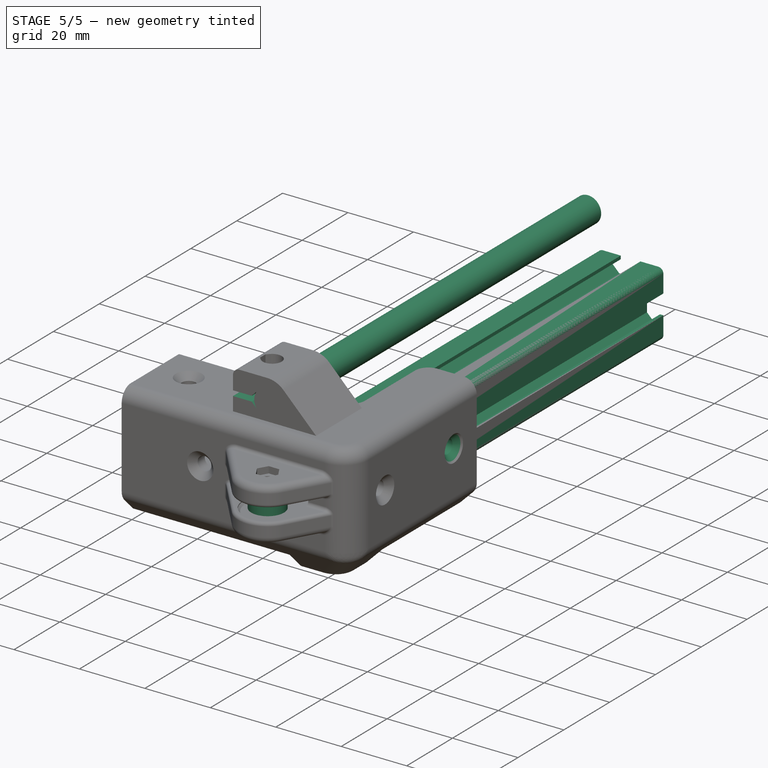
[diagram: stage 5 of 5 — iso view after this stage's code; geometry added in this stage tinted green]
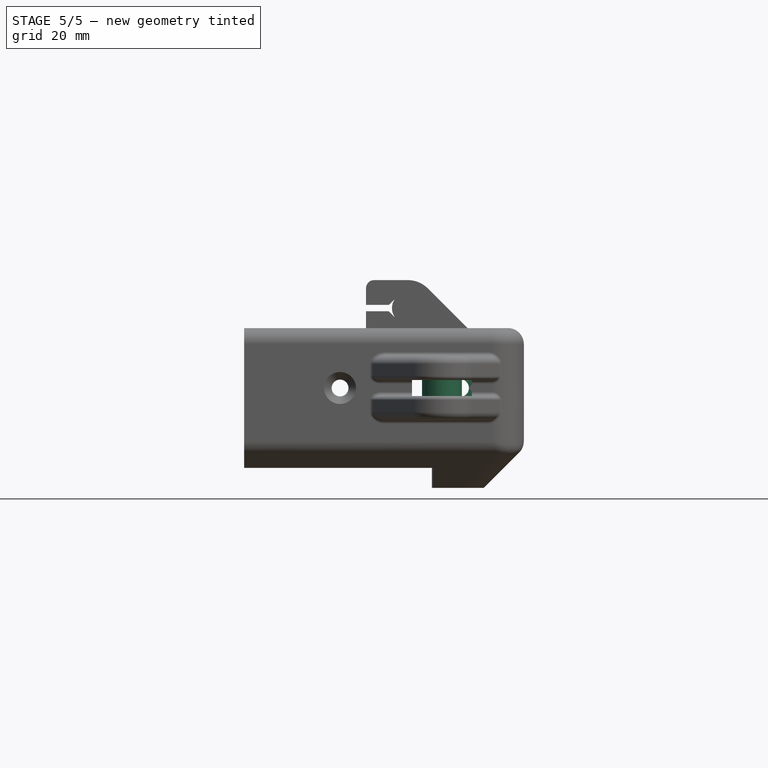
[diagram: stage 5 of 5 — front view after this stage's code; geometry added in this stage tinted green]
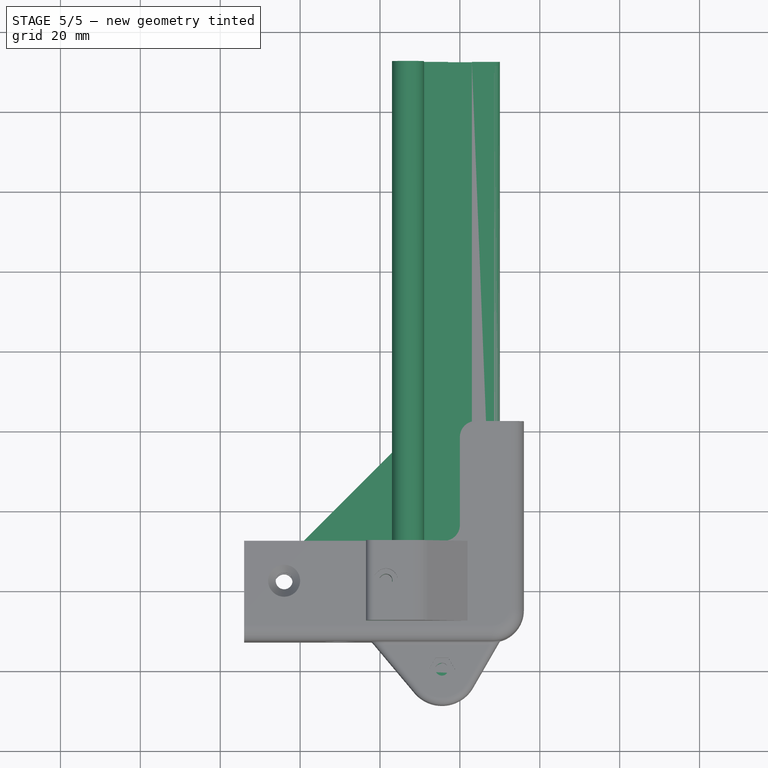
[diagram: stage 5 of 5 — top view after this stage's code; geometry added in this stage tinted green]
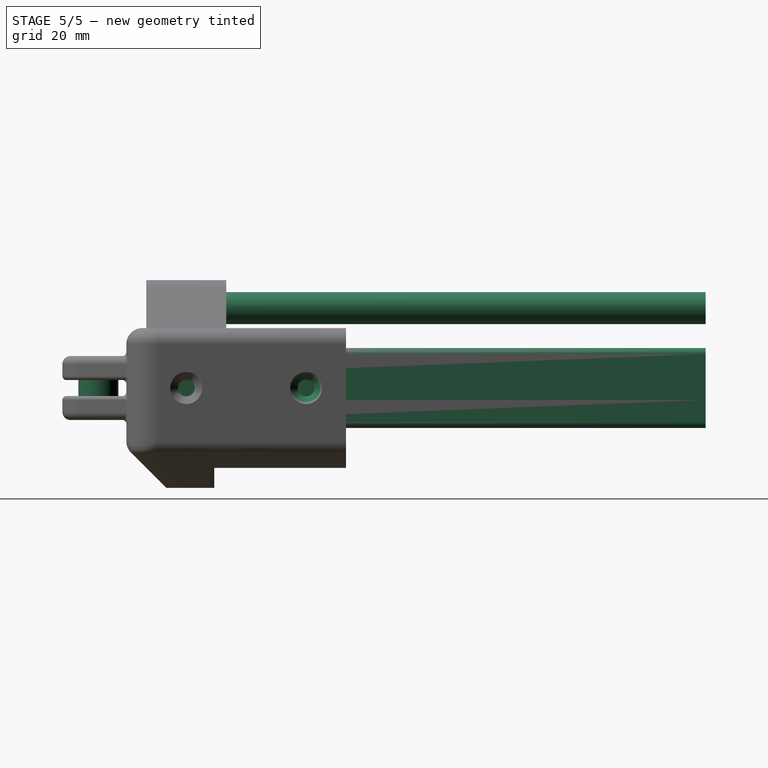
[diagram: stage 5 of 5 — right view after this stage's code; geometry added in this stage tinted green]
FEATURE [Part::FeaturePython] Clone018  label="Idler623ZZ"  # WARN: FeaturePython — macro-defined, semantics opaque (R4)
  Placement = pos=(-4.5,0,-2) rot=(0,0,1;0rad)
  Scale = (1,1,1)
FEATURE [Part::Feature] Fillet002  label="T slot extrusion 20x20x200.001"
  Placement = pos=(-210,12,-10) rot=(0,-1,0;1.5708rad)
  shape: bbox 200 x 20 x 20 mm, 51 faces (baked)
FEATURE [Sketcher::SketchObject] Sketch  label="StringPath"
  Placement = pos=(-110,82,0) rot=(0,0,1;0rad)
  sketch-geometry (18):
    g0: ArcOfCircle CenterX=-106 CenterY=90 CenterZ=0 NormalX=0 NormalY=0 NormalZ=1 Radius=5.5 StartAngle=6.27583 EndAngle=9.42478
    g1: ArcOfCircle CenterX=106 CenterY=90 CenterZ=0 NormalX=0 NormalY=0 NormalZ=1 Radius=5.5 StartAngle=8.0041e-08 EndAngle=3.17907
    g2: ArcOfCircle CenterX=105.5 CenterY=-82 CenterZ=0 NormalX=0 NormalY=0 NormalZ=1 Radius=6 StartAngle=3.09595 EndAngle=6.28319
    g3: ArcOfCircle CenterX=95 CenterY=-22 CenterZ=0 NormalX=0 NormalY=0 NormalZ=1 Radius=6 StartAngle=6.25815 EndAngle=7.85398
    g4: ArcOfCircle CenterX=95 CenterY=22 CenterZ=0 NormalX=0 NormalY=0 NormalZ=1 Radius=6 StartAngle=4.71239 EndAngle=6.29051
    g5: ArcOfCircle CenterX=-95 CenterY=22 CenterZ=0 NormalX=0 NormalY=0 NormalZ=1 Radius=6 StartAngle=3.13423 EndAngle=4.71239
    g6: ArcOfCircle CenterX=-95 CenterY=-22 CenterZ=0 NormalX=0 NormalY=0 NormalZ=1 Radius=6 StartAngle=1.5708 EndAngle=3.16664
    g7: ArcOfCircle CenterX=-105.5 CenterY=-82 CenterZ=0 NormalX=0 NormalY=0 NormalZ=1 Radius=6 StartAngle=3.14159 EndAngle=6.30824
    g8: LineSegment StartX=-111.5 StartY=90 StartZ=0 EndX=-111.5 EndY=-82 EndZ=0
    g9: LineSegment StartX=-100.998 StartY=-22.1503 StartZ=0 EndX=-99.5019 EndY=-81.8497 EndZ=0
    g10: LineSegment StartX=-95 StartY=-16 StartZ=0 EndX=95 EndY=-16 EndZ=0
    g11: LineSegment StartX=-100.5 StartY=89.9595 StartZ=0 EndX=-101 EndY=22.0442 EndZ=0
    g12: LineSegment StartX=100.504 StartY=89.7939 StartZ=0 EndX=101 EndY=22.0439 EndZ=0
    g13: LineSegment StartX=111.5 StartY=90 StartZ=0 EndX=111.5 EndY=-82 EndZ=0
    g14: LineSegment StartX=99.5062 StartY=-81.7262 StartZ=0 EndX=100.998 EndY=-22.1502 EndZ=0
    g15: LineSegment StartX=-95 StartY=16 StartZ=0 EndX=-21.9915 EndY=16 EndZ=0
    g16: LineSegment StartX=25.9262 StartY=16 StartZ=0 EndX=95 EndY=16 EndZ=0
    g17: LineSegment [constr] StartX=-59.6823 StartY=0 StartZ=0 EndX=-14.2958 EndY=0 EndZ=0
  constraints (52):
    c: Symmetric(g0,g1,g-2)
    c: Symmetric(g2,g7,g-2)
    c: Equal(g7,g2)
    c: Symmetric(g6,g3,g-2)
    c: Symmetric(g5,g4,g-2)
    c: DistanceY(g1) = 90
    c: DistanceY(g2) = -82
    c: Coincident(g13,g1)
    c: Coincident(g13,g2)
    c: Coincident(g14,g2)
    c: Coincident(g14,g3)
    c: Coincident(g3,g10)
    c: Coincident(g4,g12)
    c: Coincident(g6,g10)
    c: Coincident(g6,g9)
    c: Coincident(g7,g9)
    c: Coincident(g7,g8)
    c: Coincident(g8,g0)
    c: Coincident(g11,g0)
    c: Coincident(g12,g1)
    c: Coincident(g5,g11)
    c: Coincident(g16,g4)
    c: Coincident(g15,g5)
    c: Horizontal(g15)
    c: Horizontal(g16)
    c: PointOnObject(g15,g16)
    c: Tangent(g5,g15)
    c: Tangent(g11,g0)
    c: Tangent(g9,g7)
    c: Tangent(g9,g6)
    c: Tangent(g10,g3)
    c: Tangent(g16,g4)
    c: Equal(g6,g5)
    c: Tangent(g1,g13)
    c: Tangent(g8,g0)
    c: Radius(g4) = 6
    c: Radius(g2) = 6
    c: Tangent(g4,g12)
    c: DistanceX(g5) = -95
    c: Tangent(g10,g6)
    c: Tangent(g14,g3)
    c: Radius(g3) = 6
    c: Equal(g0,g1)
    c: Vertical(g8)
    c: Vertical(g13)
    c: Radius(g0) = 5.5
    c: DistanceX(g0) = -106
    c: Tangent(g5,g11)
    c: DistanceY(g6,g5) = 44
    c: Horizontal(g17)
    c: Symmetric(g5,g6,g17)
    c: PointOnObject(g17,g-1)
FEATURE [Part::Mirroring] Part__Mirroring001  label="YBar (Mirror #2)"
  Base = (0,0,0)
  Normal = (1,0,0)
  Placement = pos=(-110,82,-10) rot=(0,0,1;0rad)
FEATURE [Part::Mirroring] Part__Mirroring  label="T slot extrusion 20x20x140.001 (Mirror #1)"
  Base = (0,0,0)
  Normal = (1,0,0)
  Placement = pos=(-110,82,-10) rot=(0,0,1;0rad)
FEATURE [Sketcher::SketchObject] Sketch049  label="SmRodSlot"
  expr: Constraints[5] = 4 + pars.SmRodTol
  sketch-geometry (6):
    g0: ArcOfCircle CenterX=0 CenterY=0 CenterZ=0 NormalX=0 NormalY=0 NormalZ=1 Radius=3.95 StartAngle=2.3562 EndAngle=7.06858
    g1: LineSegment StartX=-2.79307 StartY=2.79307 StartZ=0 EndX=-0.8 EndY=4.78614 EndZ=0
    g2: LineSegment StartX=0.8 StartY=4.78614 StartZ=0 EndX=2.79307 EndY=2.79307 EndZ=0
    g3: LineSegment StartX=-0.8 StartY=4.78614 StartZ=0 EndX=-0.8 EndY=15 EndZ=0
    g4: LineSegment StartX=-0.8 StartY=15 StartZ=0 EndX=0.8 EndY=15 EndZ=0
    g5: LineSegment StartX=0.8 StartY=15 StartZ=0 EndX=0.8 EndY=4.78614 EndZ=0
  constraints (18):
    c: Coincident(g1,g0)
    c: Coincident(g2,g0)
    c: Tangent(g1,g0)
    c: Tangent(g2,g0)
    c: Perpendicular(g2,g1)
    c: Radius(g0) = 3.95
    c: Coincident(g0,g-1)
    c: Coincident(g3,g4)
    c: Coincident(g4,g5)
    c: Vertical(g3)
    c: Vertical(g5)
    c: Horizontal(g4)
    c: Coincident(g3,g1)
    c: DistanceY(g3) = 15
    c: DistanceX(g4,g4) = 1.6
    c: Coincident(g5,g2)
    c: Angle(g3,g1) = 2.35619
    c: Symmetric(g3,g4,g-2)
FEATURE [PartDesign::Pad] Pad019  label="SmRodSlot001"
  Length = 50
  Length2 = 100
  Sketch = -> Sketch049
  Type = 0
FEATURE [Part::FeaturePython] Clone035  label="Clone of SmRodSlot001"  # Draft clone (typed FeaturePython)
  Objects = -> [Pad019]
  Placement = pos=(-13,0,20) rot=(0.57735,-0.57735,-0.57735;4.18879rad)
  Scale = (1,1,1)
FEATURE [Part::FeaturePython] Array  label="SideBolts"  # Draft array (typed FeaturePython)
  Angle = 360
  ArrayType = 0
  Axis = (0,0,1)
  Base = -> Clone042
  Center = (0,0,0)
  Fuse = false
  IntervalAxis = (0,0,0)
  IntervalX = (1,0,0)
  IntervalY = (0,30,0)
  IntervalZ = (0,0,0)
  NumberPolar = 1
  NumberX = 1
  NumberY = 2
  NumberZ = 1
FEATURE [Part::Cut] Cut004004015  label="IdlerBoltCut"
  Base = -> Cut004004024
  Tool = -> Clone044
FEATURE [Part::Cut] Cut004004016  label="SmRodCut"
  Base = -> Cut004004015
  Tool = -> Clone035
FEATURE [Part::Cut] Cut004004017  label="SideBoltsCut"
  Base = -> Cut004004016
  Tool = -> Array
FEATURE [Part::Cut] Cut004004018  label="LowerSideCut"
  Base = -> Cut004004017
  Tool = -> Clone
FEATURE [Part::Cut] Cut004004019  label="LowerFrontBoltCut"
  Base = -> Cut004004018
  Tool = -> Clone045
FEATURE [Part::Cut] Cut004004020  label="UpperFrontBoltCut"
  Base = -> Cut004004019
  Tool = -> Clone048004
FEATURE [Part::Cut] Cut004004022  label="YRodAdjustNut"
  Base = -> Cut004004020
  Tool = -> Clone037
FEATURE [Part::Cut] Cut004004023  label="YRodAdjustBolt"
  Base = -> Cut004004022
  Tool = -> Clone043
FEATURE [Part::Cut] Cut004004021  label="FrontBoltCut"
  Base = -> Cut004004023
  Tool = -> Clone048003
FEATURE [Part::Chamfer] Chamfer003  label="ReinforceChamfer"
  Base = -> Cut004004021
  Edges = 1 edges r=29.5: [Edge335]
FEATURE [Part::FeaturePython] refine  label="refine_ReinforceChamfer"  # WARN: FeaturePython — macro-defined, semantics opaque (R4)
  Base = -> Chamfer003
FEATURE [App::DocumentObjectGroup] Group003  label="src"
  Group = -> [Fillet,Fillet003,Cut004004014,Cut004004021,Fusion005,Fusion002,Fillet008,Chamfer003,Chamfer004,refine,refine001,refine002]
FEATURE [Part::FeaturePython] Clone048  label="FrontCorner"  # Draft clone (typed FeaturePython)
  Objects = -> [refine]
  Scale = (1,1,1)
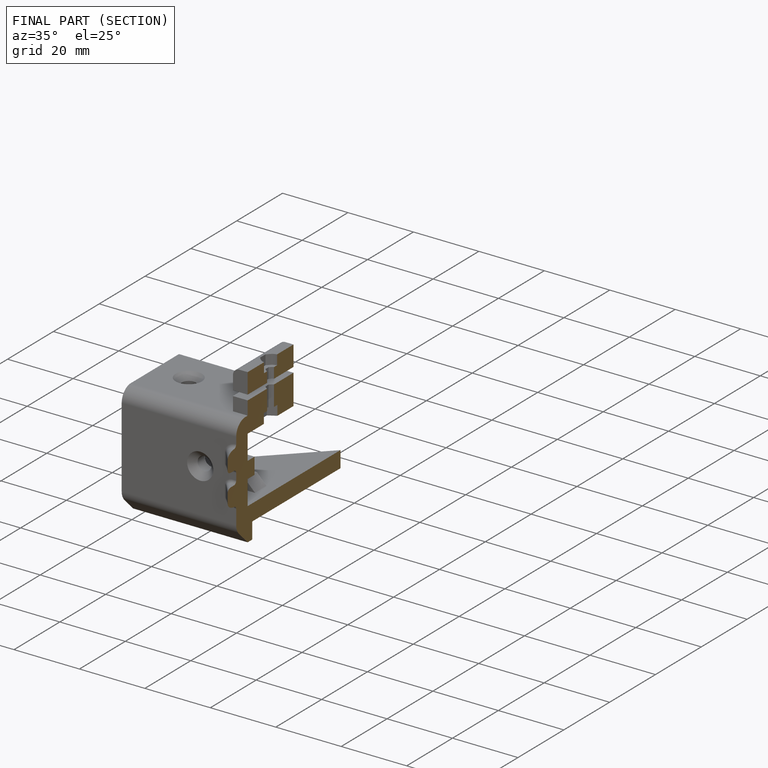
[diagram: finished part — half-section view (interior)]
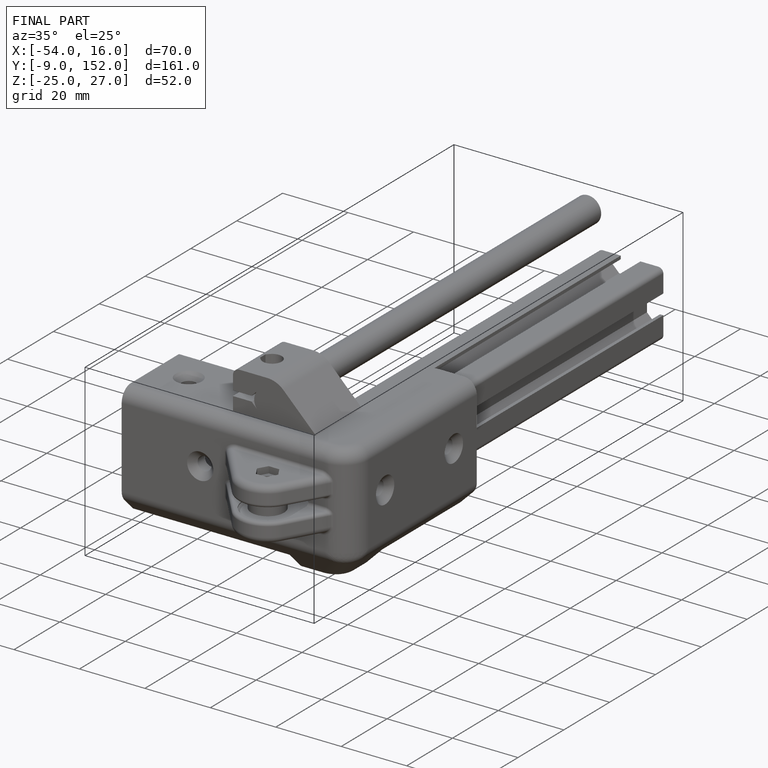
[diagram: finished part — iso view with bounding-box wireframe]
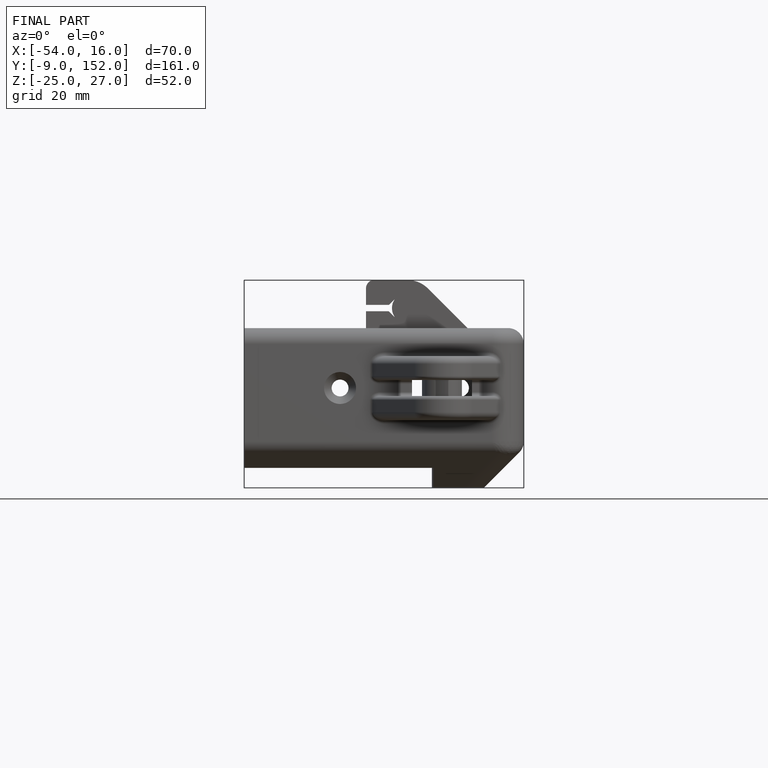
[diagram: finished part — front view with bounding-box wireframe]
